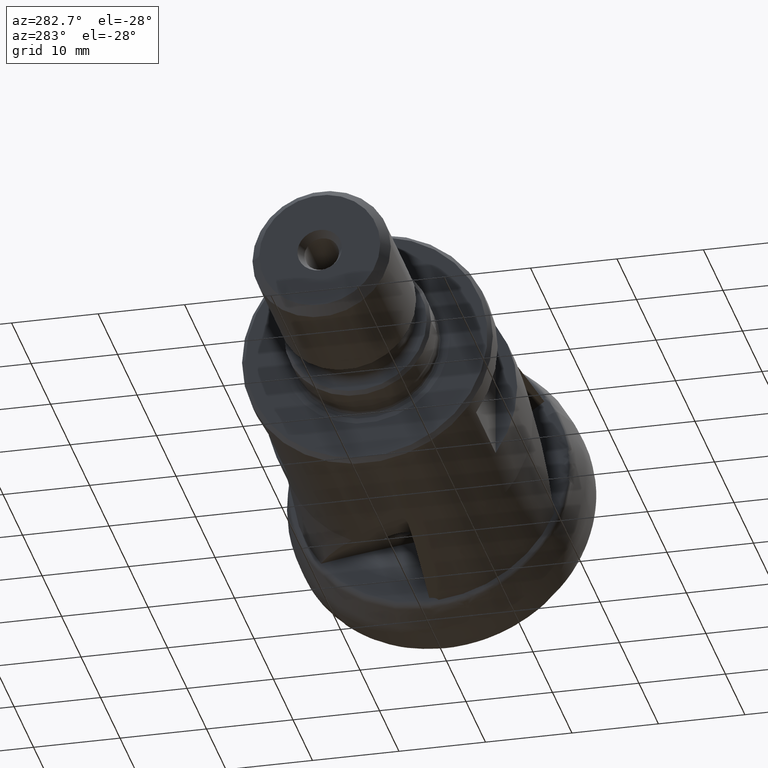
[diagram: clean part render]
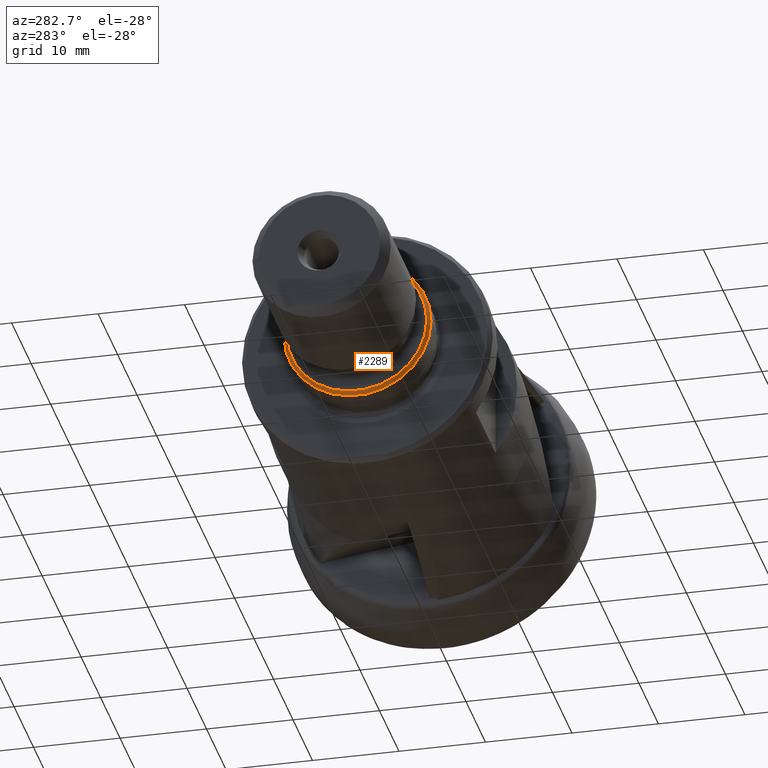
[diagram: same view with one face highlighted and labeled with its STEP entity id]
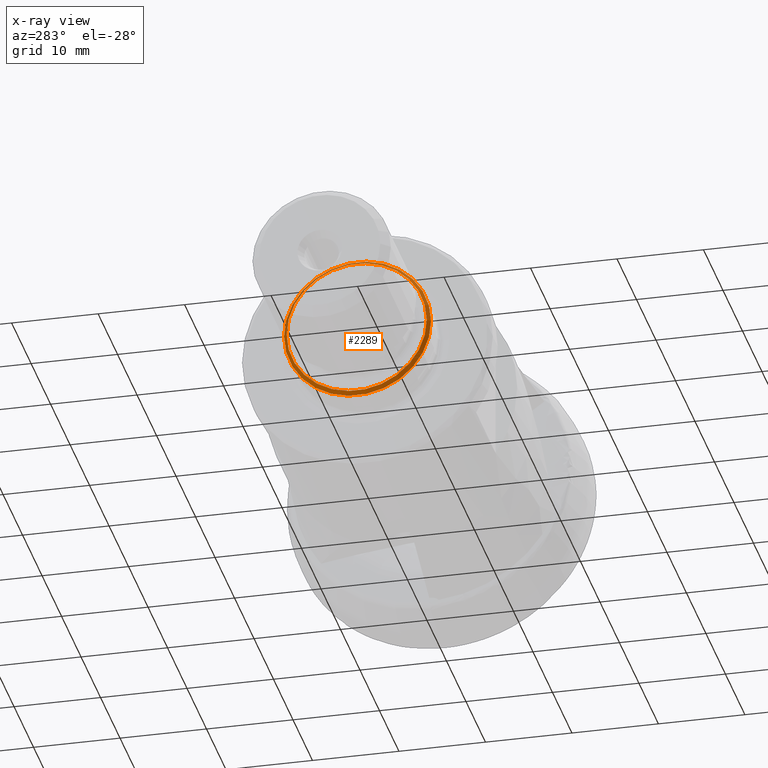
[diagram: x-ray of the same camera — body ghosted, the highlighted face saturated]
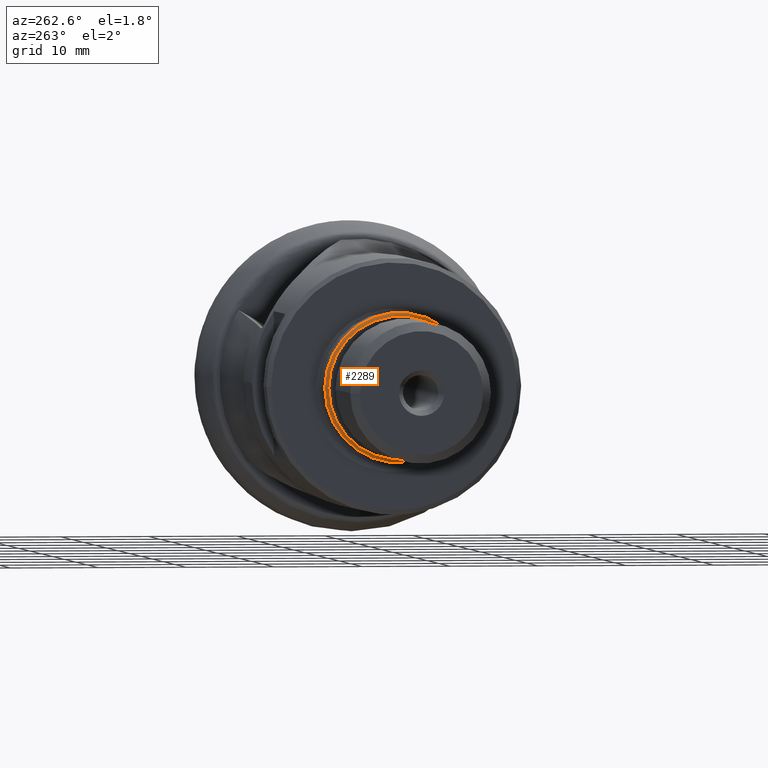
[diagram: same view with one face highlighted and labeled with its STEP entity id]
A machine part, auxiliary view. The second image highlights one B-rep face of the part: STEP entity #2289.
The next image is the same camera in x-ray: the body ghosted, the highlighted face saturated — about 21% of this face is hidden behind the body in this view.
A second angle (auxiliary view) of the same face is appended — the face is thin or edge-on in the first view.
In plain terms, the highlighted conical surface has half-angle 45 deg.
Its self-contained STEP definition (entity closure, byte-faithful):
#33 = CIRCLE ( 'NONE', #3261, 8.099999999999999600 ) ;
#94 = ORIENTED_EDGE ( 'NONE', *, *, #3877, .T. ) ;
#441 = CARTESIAN_POINT ( 'NONE',  ( -46.04999999999999700, 8.099999999999994300, 0.0000000000000000000 ) ) ;
#529 = DIRECTION ( 'NONE',  ( 0.0000000000000000000, 1.000000000000000000, 0.0000000000000000000 ) ) ;
#665 = VERTEX_POINT ( 'NONE', #4169 ) ;
#933 = CIRCLE ( 'NONE', #4486, 8.500000000000000000 ) ;
#1166 = EDGE_LOOP ( 'NONE', ( #4044 ) ) ;
#1264 = FACE_BOUND ( 'NONE', #1166, .T. ) ;
#1433 = CARTESIAN_POINT ( 'NONE',  ( -46.04999999999999700, -5.639498510073552300E-015, 0.0000000000000000000 ) ) ;
#1442 = DIRECTION ( 'NONE',  ( 1.000000000000000000, 1.224646799147351500E-016, -0.0000000000000000000 ) ) ;
#1476 = DIRECTION ( 'NONE',  ( 0.0000000000000000000, 1.000000000000000000, 0.0000000000000000000 ) ) ;
#1890 = VERTEX_POINT ( 'NONE', #441 ) ;
#2289 = ADVANCED_FACE ( 'NONE', ( #1264, #4148 ), #2749, .T. ) ;
#2318 = EDGE_CURVE ( 'NONE', #1890, #1890, #33, .T. ) ;
#2579 = EDGE_LOOP ( 'NONE', ( #94 ) ) ;
#2749 = CONICAL_SURFACE ( 'NONE', #3409, 8.600000000000001400, 0.7853981633974500600 ) ;
#2760 = CARTESIAN_POINT ( 'NONE',  ( -45.64999999999999900, -5.590512638107658900E-015, 0.0000000000000000000 ) ) ;
#3136 = DIRECTION ( 'NONE',  ( -1.000000000000000000, -1.224646799147351500E-016, 0.0000000000000000000 ) ) ;
#3261 = AXIS2_PLACEMENT_3D ( 'NONE', #1433, #4038, #1476 ) ;
#3409 = AXIS2_PLACEMENT_3D ( 'NONE', #4033, #1442, #4051 ) ;
#3877 = EDGE_CURVE ( 'NONE', #665, #665, #933, .T. ) ;
#4033 = CARTESIAN_POINT ( 'NONE',  ( -45.54999999999999000, -5.578266170116184700E-015, 0.0000000000000000000 ) ) ;
#4038 = DIRECTION ( 'NONE',  ( 1.000000000000000000, 1.224646799147351500E-016, -0.0000000000000000000 ) ) ;
#4044 = ORIENTED_EDGE ( 'NONE', *, *, #2318, .T. ) ;
#4051 = DIRECTION ( 'NONE',  ( 0.0000000000000000000, 1.000000000000000000, 0.0000000000000000000 ) ) ;
#4148 = FACE_OUTER_BOUND ( 'NONE', #2579, .T. ) ;
#4169 = CARTESIAN_POINT ( 'NONE',  ( -45.64999999999999900, 8.499999999999994700, 0.0000000000000000000 ) ) ;
#4486 = AXIS2_PLACEMENT_3D ( 'NONE', #2760, #3136, #529 ) ;